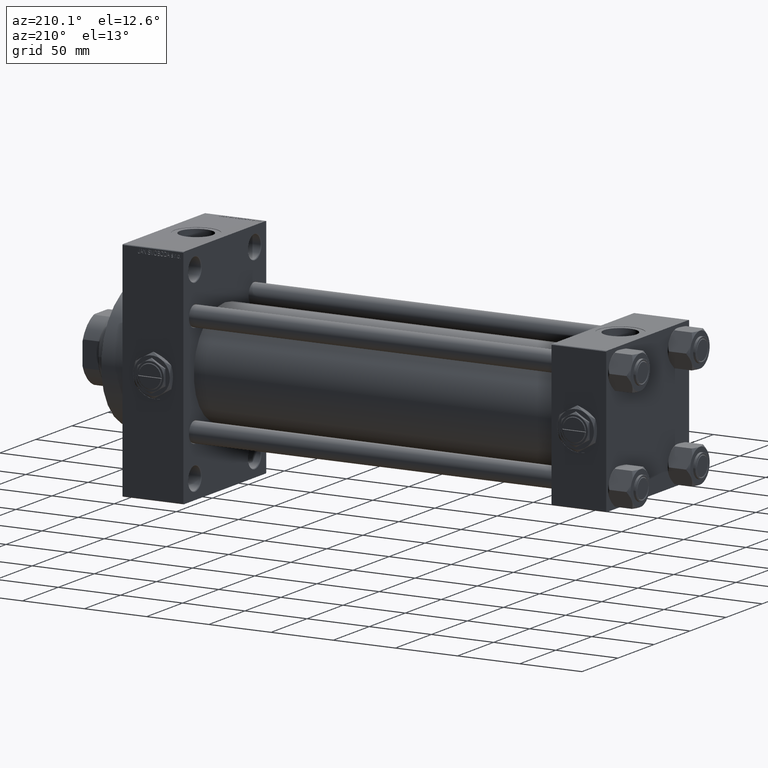
[diagram: clean part render]
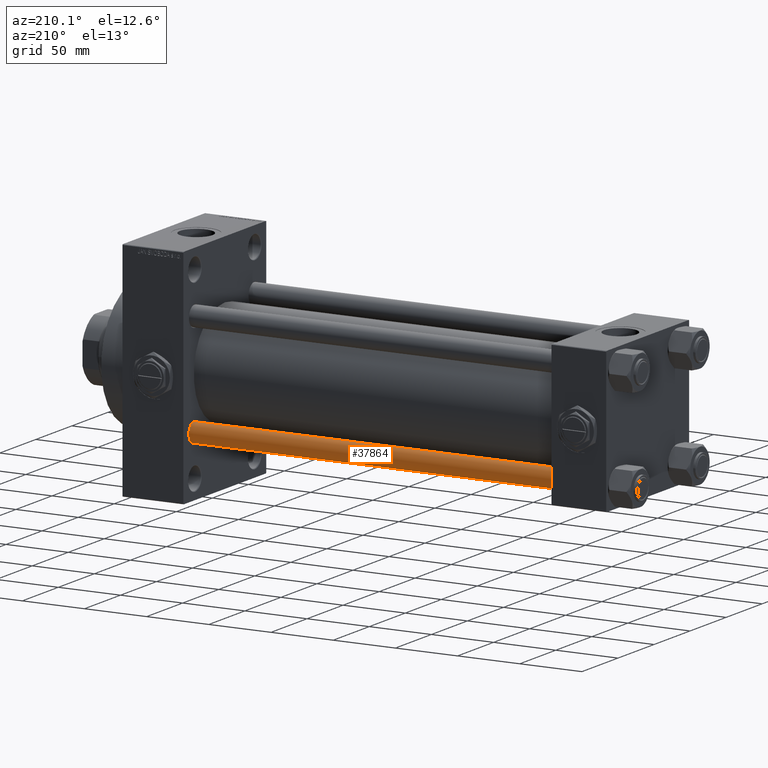
[diagram: same view with one face highlighted and labeled with its STEP entity id]
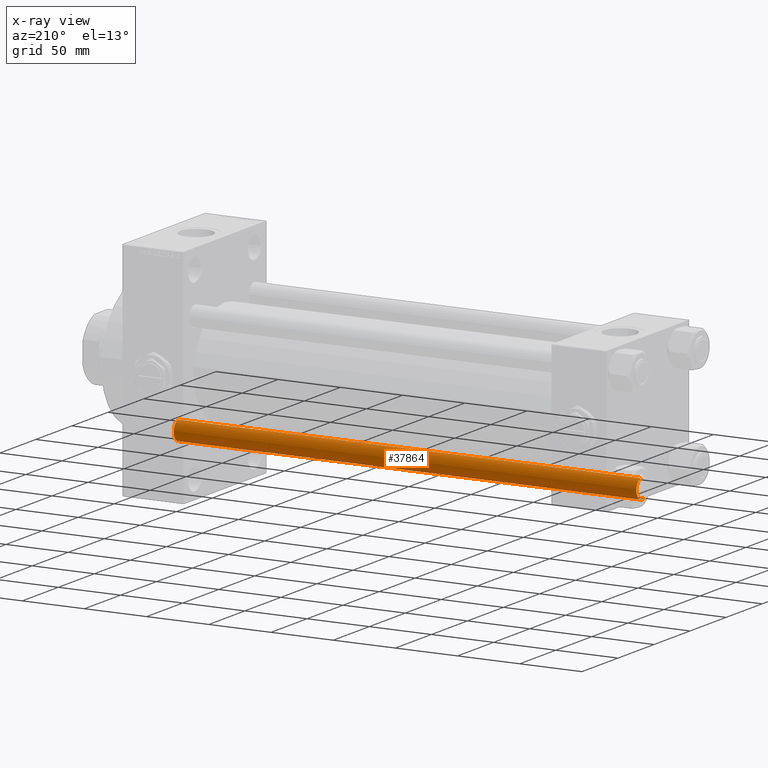
[diagram: x-ray of the same camera — body ghosted, the highlighted face saturated]
A machine part, auxiliary view. The second image highlights one B-rep face of the part: STEP entity #37864.
The next image is the same camera in x-ray: the body ghosted, the highlighted face saturated — about 0% of this face is hidden behind the body in this view.
In plain terms, the highlighted cylindrical surface (edge-blend (fillet) strip) has radius 8 mm, axis along (1, -0, 0).
Its self-contained STEP definition (entity closure, byte-faithful):
#953 = ORIENTED_EDGE ( 'NONE', *, *, #32717, .F. ) ;
#1441 = VERTEX_POINT ( 'NONE', #48182 ) ;
#2524 = FACE_OUTER_BOUND ( 'NONE', #22693, .T. ) ;
#4126 = DIRECTION ( 'NONE',  ( 1.000000000000000000, 0.000000000000000000, 0.000000000000000000 ) ) ;
#5571 = DIRECTION ( 'NONE',  ( -1.000000000000000000, 0.000000000000000000, 0.000000000000000000 ) ) ;
#7353 = LINE ( 'NONE', #26264, #45455 ) ;
#7433 = AXIS2_PLACEMENT_3D ( 'NONE', #30875, #19526, #4126 ) ;
#7901 = DIRECTION ( 'NONE',  ( 1.000000000000000000, 0.000000000000000000, 0.000000000000000000 ) ) ;
#8713 = DIRECTION ( 'NONE',  ( -0.000000000000000000, -0.000000000000000000, -1.000000000000000000 ) ) ;
#9201 = AXIS2_PLACEMENT_3D ( 'NONE', #34880, #42431, #7901 ) ;
#9604 = DIRECTION ( 'NONE',  ( -0.000000000000000000, -0.000000000000000000, -1.000000000000000000 ) ) ;
#10343 = CYLINDRICAL_SURFACE ( 'NONE', #11652, 8.000000000000000000 ) ;
#10375 = DIRECTION ( 'NONE',  ( -0.000000000000000000, -0.000000000000000000, -1.000000000000000000 ) ) ;
#11652 = AXIS2_PLACEMENT_3D ( 'NONE', #25724, #9604, #5571 ) ;
#15247 = CARTESIAN_POINT ( 'NONE',  ( 8.000000000000000000, 9.797174393178825657E-16, 372.5000000000000000 ) ) ;
#16606 = ORIENTED_EDGE ( 'NONE', *, *, #36407, .T. ) ;
#17158 = VERTEX_POINT ( 'NONE', #15247 ) ;
#19526 = DIRECTION ( 'NONE',  ( 0.000000000000000000, 0.000000000000000000, -1.000000000000000000 ) ) ;
#19842 = VERTEX_POINT ( 'NONE', #49513 ) ;
#22693 = EDGE_LOOP ( 'NONE', ( #32926, #42819, #16606, #953 ) ) ;
#23700 = CIRCLE ( 'NONE', #9201, 8.000000000000000000 ) ;
#24549 = CARTESIAN_POINT ( 'NONE',  ( 8.000000000000000000, 9.797174393178825657E-16, 0.5000000000000559552 ) ) ;
#25724 = CARTESIAN_POINT ( 'NONE',  ( 0.000000000000000000, 0.000000000000000000, 373.0000000000000000 ) ) ;
#26264 = CARTESIAN_POINT ( 'NONE',  ( 8.000000000000000000, 9.797174393178825657E-16, 373.0000000000000000 ) ) ;
#30285 = VERTEX_POINT ( 'NONE', #24549 ) ;
#30875 = CARTESIAN_POINT ( 'NONE',  ( 0.000000000000000000, 0.000000000000000000, 372.5000000000000000 ) ) ;
#32252 = EDGE_CURVE ( 'NONE', #19842, #17158, #35623, .T. ) ;
#32717 = EDGE_CURVE ( 'NONE', #19842, #1441, #38969, .T. ) ;
#32926 = ORIENTED_EDGE ( 'NONE', *, *, #32252, .T. ) ;
#34880 = CARTESIAN_POINT ( 'NONE',  ( 0.000000000000000000, 0.000000000000000000, 0.5000000000000559552 ) ) ;
#35623 = CIRCLE ( 'NONE', #7433, 8.000000000000000000 ) ;
#36407 = EDGE_CURVE ( 'NONE', #30285, #1441, #23700, .T. ) ;
#37524 = EDGE_CURVE ( 'NONE', #17158, #30285, #7353, .T. ) ;
#37864 = ADVANCED_FACE ( 'NONE', ( #2524 ), #10343, .T. ) ;
#38969 = LINE ( 'NONE', #43752, #48471 ) ;
#42431 = DIRECTION ( 'NONE',  ( -0.000000000000000000, -0.000000000000000000, 1.000000000000000000 ) ) ;
#42819 = ORIENTED_EDGE ( 'NONE', *, *, #37524, .T. ) ;
#43752 = CARTESIAN_POINT ( 'NONE',  ( -8.000000000000000000, 0.000000000000000000, 373.0000000000000000 ) ) ;
#45455 = VECTOR ( 'NONE', #10375, 1000.000000000000000 ) ;
#48182 = CARTESIAN_POINT ( 'NONE',  ( -8.000000000000000000, 0.000000000000000000, 0.5000000000000559552 ) ) ;
#48471 = VECTOR ( 'NONE', #8713, 1000.000000000000000 ) ;
#49513 = CARTESIAN_POINT ( 'NONE',  ( -8.000000000000000000, 0.000000000000000000, 372.5000000000000000 ) ) ;